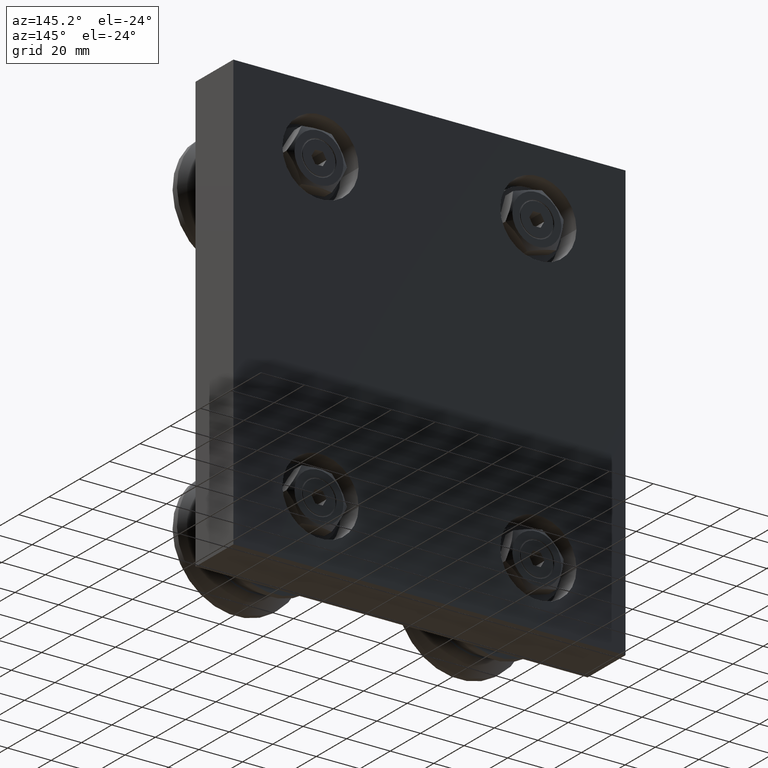
[diagram: clean part render]
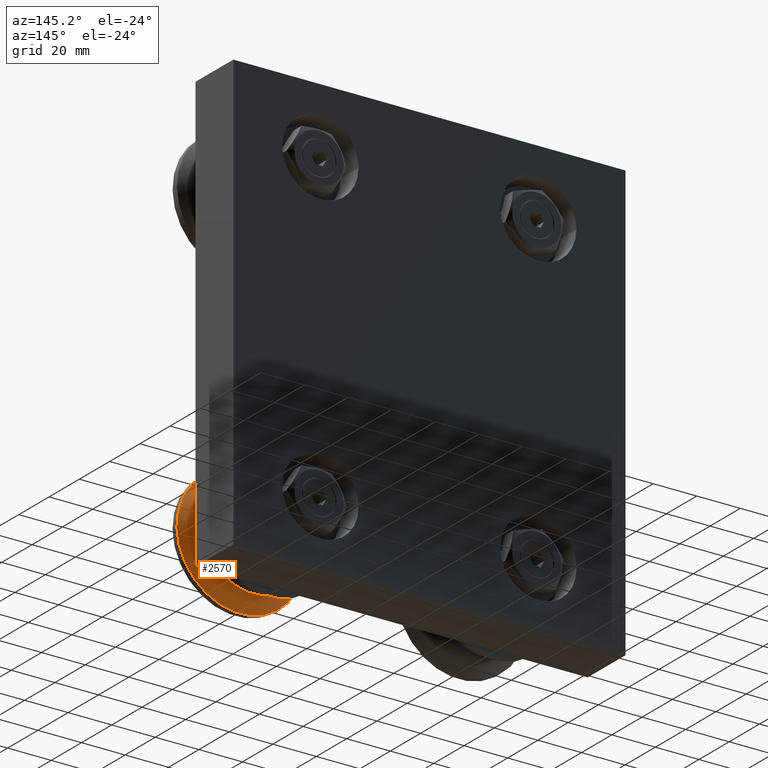
[diagram: same view with one face highlighted and labeled with its STEP entity id]
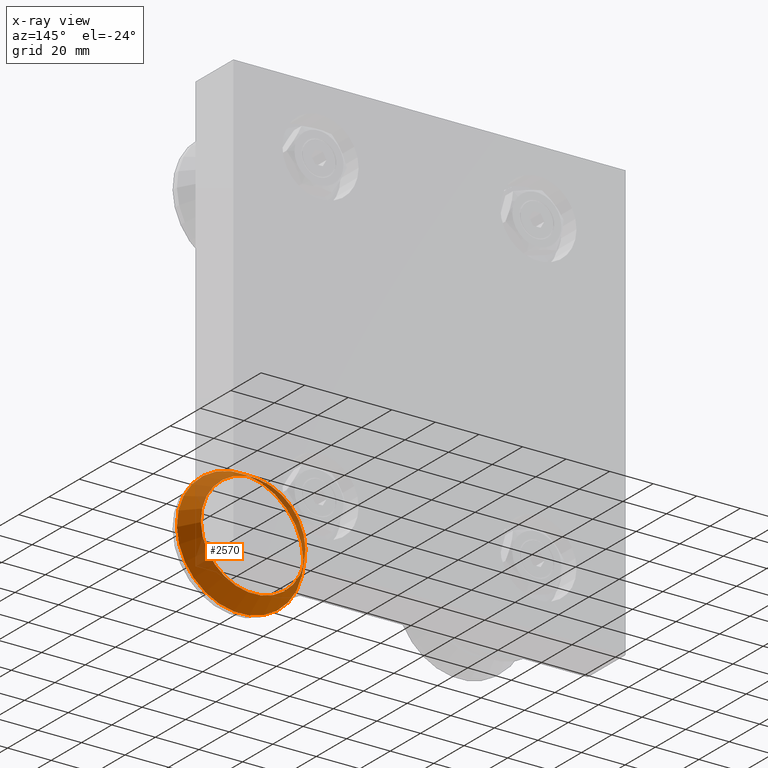
[diagram: x-ray of the same camera — body ghosted, the highlighted face saturated]
A machine part, auxiliary view. The second image highlights one B-rep face of the part: STEP entity #2570.
The next image is the same camera in x-ray: the body ghosted, the highlighted face saturated — about 28% of this face is hidden behind the body in this view.
In plain terms, the highlighted conical surface has half-angle 30 deg.
Its self-contained STEP definition (entity closure, byte-faithful):
#95=CONICAL_SURFACE('',#3026,26.5007386859688,0.523598775598299);
#284=LINE('',#4484,#483);
#483=VECTOR('',#3700,26.5007386859688);
#725=FACE_OUTER_BOUND('',#912,.T.);
#912=EDGE_LOOP('',(#2132,#2133,#2134,#2135));
#1055=CIRCLE('',#3025,29.);
#1056=CIRCLE('',#3027,24.0014773719376);
#1250=VERTEX_POINT('',#4478);
#1251=VERTEX_POINT('',#4482);
#1554=EDGE_CURVE('',#1250,#1250,#1055,.T.);
#1556=EDGE_CURVE('',#1251,#1251,#1056,.T.);
#1557=EDGE_CURVE('',#1251,#1250,#284,.T.);
#2132=ORIENTED_EDGE('',*,*,#1556,.F.);
#2133=ORIENTED_EDGE('',*,*,#1557,.T.);
#2134=ORIENTED_EDGE('',*,*,#1554,.T.);
#2135=ORIENTED_EDGE('',*,*,#1557,.F.);
#2570=ADVANCED_FACE('',(#725),#95,.T.);
#3025=AXIS2_PLACEMENT_3D('',#4479,#3693,#3694);
#3026=AXIS2_PLACEMENT_3D('',#4481,#3696,#3697);
#3027=AXIS2_PLACEMENT_3D('',#4483,#3698,#3699);
#3693=DIRECTION('center_axis',(1.,0.,0.));
#3694=DIRECTION('ref_axis',(0.,1.,0.));
#3696=DIRECTION('center_axis',(-1.,0.,0.));
#3697=DIRECTION('ref_axis',(0.,1.,0.));
#3698=DIRECTION('center_axis',(1.,0.,0.));
#3699=DIRECTION('ref_axis',(0.,1.,0.));
#3700=DIRECTION('',(-0.866025403784439,-0.5,-6.12323399573676E-17));
#4478=CARTESIAN_POINT('',(-9.60769515458676,-29.,-3.55147571752732E-15));
#4479=CARTESIAN_POINT('Origin',(-9.60769515458676,0.,0.));
#4481=CARTESIAN_POINT('Origin',(-5.27884757729338,0.,0.));
#4482=CARTESIAN_POINT('',(-0.95,-24.0014773719376,-2.9393332438351E-15));
#4483=CARTESIAN_POINT('Origin',(-0.95,0.,0.));
#4484=CARTESIAN_POINT('',(-5.27884757729338,-26.5007386859688,-3.24540448068121E-15));